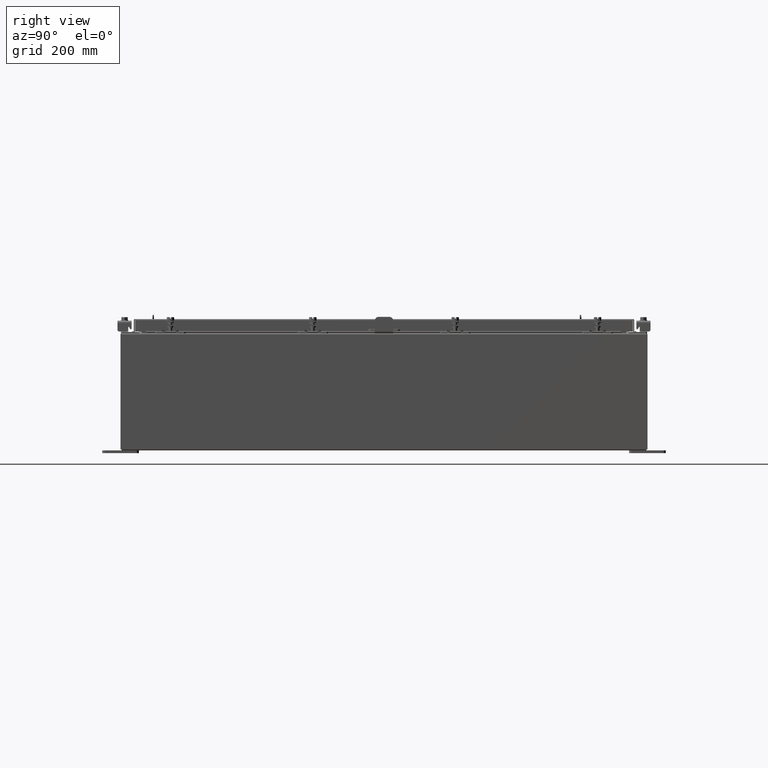
[diagram: clean part render]
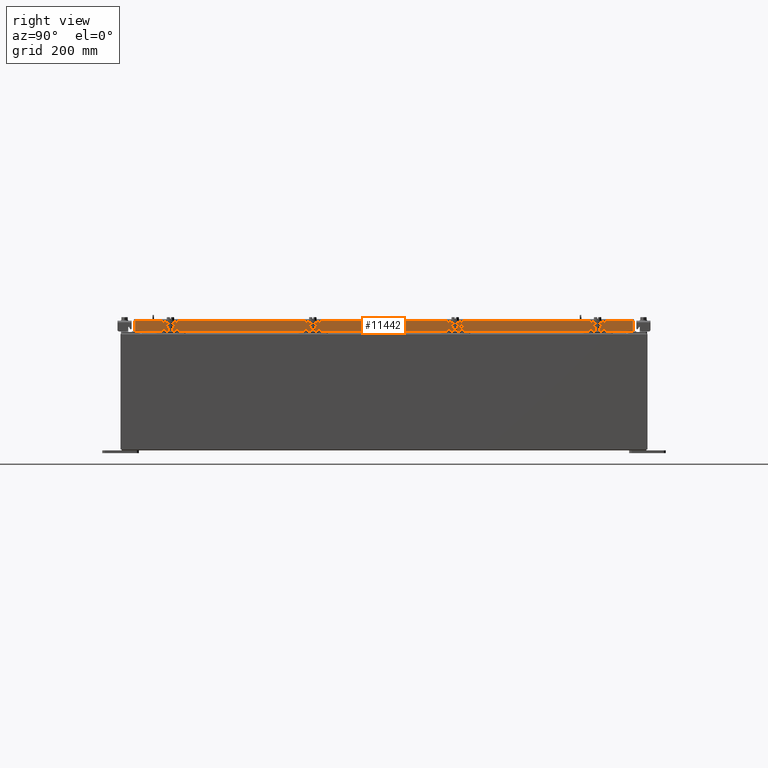
[diagram: same view with one face highlighted and labeled with its STEP entity id]
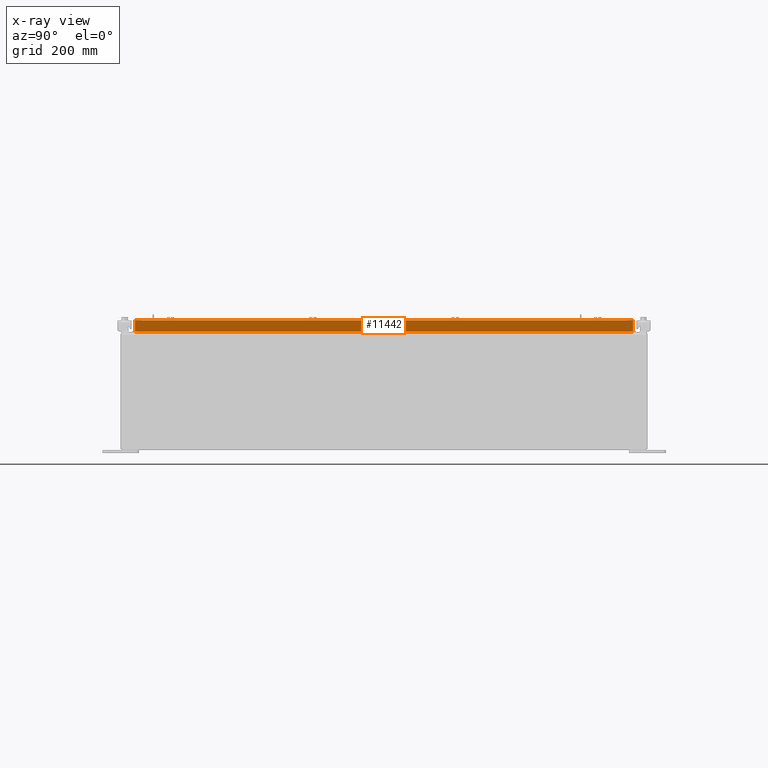
[diagram: x-ray of the same camera — body ghosted, the highlighted face saturated]
A machine part, right view. The second image highlights one B-rep face of the part: STEP entity #11442.
The next image is the same camera in x-ray: the body ghosted, the highlighted face saturated — about 0% of this face is hidden behind the body in this view.
In plain terms, the highlighted planar face has unit normal (1, 0, 0).
Its self-contained STEP definition (entity closure, byte-faithful):
#77 = VERTEX_POINT ( 'NONE', #16810 ) ;
#1429 = LINE ( 'NONE', #14726, #10684 ) ;
#2541 = DIRECTION ( 'NONE',  ( 0.0000000000000000000, -1.000000000000000000, 0.0000000000000000000 ) ) ;
#3144 = CARTESIAN_POINT ( 'NONE',  ( 14.07799999999999900, -17.00515786437626900, -0.8499999999999999800 ) ) ;
#3795 = ORIENTED_EDGE ( 'NONE', *, *, #22331, .F. ) ;
#3804 = DIRECTION ( 'NONE',  ( -2.818880942772360500E-015, -6.982962677686269100E-015, 1.000000000000000000 ) ) ;
#3841 = VECTOR ( 'NONE', #3804, 39.37007874015748100 ) ;
#4962 = CARTESIAN_POINT ( 'NONE',  ( 14.07799999999999600, 16.25515786437626900, -0.8499999999999999800 ) ) ;
#5165 = CARTESIAN_POINT ( 'NONE',  ( 14.07799999999999900, -17.09400000000000100, -0.8499999999999999800 ) ) ;
#6523 = CARTESIAN_POINT ( 'NONE',  ( 14.07799999999999600, -16.25515786437626900, -0.8499999999999999800 ) ) ;
#6545 = FACE_OUTER_BOUND ( 'NONE', #8968, .T. ) ;
#6692 = LINE ( 'NONE', #14753, #10764 ) ;
#7309 = VERTEX_POINT ( 'NONE', #3144 ) ;
#7569 = ORIENTED_EDGE ( 'NONE', *, *, #10719, .F. ) ;
#8122 = PLANE ( 'NONE',  #21911 ) ;
#8805 = ORIENTED_EDGE ( 'NONE', *, *, #14671, .T. ) ;
#8968 = EDGE_LOOP ( 'NONE', ( #7569, #9024, #3795, #21104, #10494, #8805 ) ) ;
#9024 = ORIENTED_EDGE ( 'NONE', *, *, #10276, .F. ) ;
#9754 = CARTESIAN_POINT ( 'NONE',  ( 14.07799999999999800, 17.00515786437626500, 1.584471836325272600E-013 ) ) ;
#9810 = EDGE_CURVE ( 'NONE', #14790, #12229, #17823, .T. ) ;
#10276 = EDGE_CURVE ( 'NONE', #21145, #7309, #1429, .T. ) ;
#10494 = ORIENTED_EDGE ( 'NONE', *, *, #18887, .T. ) ;
#10684 = VECTOR ( 'NONE', #2541, 39.37007874015748100 ) ;
#10719 = EDGE_CURVE ( 'NONE', #7309, #17833, #12587, .T. ) ;
#10764 = VECTOR ( 'NONE', #13025, 39.37007874015748100 ) ;
#11442 = ADVANCED_FACE ( 'NONE', ( #6545 ), #8122, .T. ) ;
#11616 = CARTESIAN_POINT ( 'NONE',  ( 14.07799999999999900, 17.00515786437627200, -0.8499999999999999800 ) ) ;
#11666 = DIRECTION ( 'NONE',  ( 0.0000000000000000000, -1.000000000000000000, 0.0000000000000000000 ) ) ;
#11856 = LINE ( 'NONE', #20290, #15927 ) ;
#12229 = VERTEX_POINT ( 'NONE', #4962 ) ;
#12587 = LINE ( 'NONE', #14243, #3841 ) ;
#13025 = DIRECTION ( 'NONE',  ( 0.0000000000000000000, -1.000000000000000000, 0.0000000000000000000 ) ) ;
#13171 = CARTESIAN_POINT ( 'NONE',  ( 14.07799999999999800, -17.00515786437627200, -0.08770000000000026400 ) ) ;
#13606 = VECTOR ( 'NONE', #20161, 39.37007874015748100 ) ;
#13881 = DIRECTION ( 'NONE',  ( 0.0000000000000000000, -1.000000000000000000, 0.0000000000000000000 ) ) ;
#14243 = CARTESIAN_POINT ( 'NONE',  ( 14.07799999999999800, -17.00515786437627200, -0.07470000000000015500 ) ) ;
#14671 = EDGE_CURVE ( 'NONE', #77, #17833, #6692, .T. ) ;
#14726 = CARTESIAN_POINT ( 'NONE',  ( 14.07799999999999900, -17.09400000000000100, -0.8499999999999999800 ) ) ;
#14753 = CARTESIAN_POINT ( 'NONE',  ( 14.07799999999999800, 0.0000000000000000000, -0.08770000000000026400 ) ) ;
#14790 = VERTEX_POINT ( 'NONE', #11616 ) ;
#15062 = DIRECTION ( 'NONE',  ( 1.000000000000000000, 0.0000000000000000000, 2.818880942772360100E-015 ) ) ;
#15927 = VECTOR ( 'NONE', #11666, 39.37007874015748100 ) ;
#16804 = CARTESIAN_POINT ( 'NONE',  ( 14.07799999999999800, 0.0000000000000000000, 4.043135030623109600E-014 ) ) ;
#16810 = CARTESIAN_POINT ( 'NONE',  ( 14.07799999999999800, 17.00515786437626200, -0.08770000000000026400 ) ) ;
#17823 = LINE ( 'NONE', #5165, #21842 ) ;
#17833 = VERTEX_POINT ( 'NONE', #13171 ) ;
#18190 = LINE ( 'NONE', #9754, #13606 ) ;
#18887 = EDGE_CURVE ( 'NONE', #14790, #77, #18190, .T. ) ;
#20161 = DIRECTION ( 'NONE',  ( -2.818880942772360500E-015, -6.982962677686269100E-015, 1.000000000000000000 ) ) ;
#20254 = DIRECTION ( 'NONE',  ( 2.818880942772360100E-015, 0.0000000000000000000, -1.000000000000000000 ) ) ;
#20290 = CARTESIAN_POINT ( 'NONE',  ( 14.07799999999999600, 16.25515786437627200, -0.8499999999999999800 ) ) ;
#21104 = ORIENTED_EDGE ( 'NONE', *, *, #9810, .F. ) ;
#21145 = VERTEX_POINT ( 'NONE', #6523 ) ;
#21842 = VECTOR ( 'NONE', #13881, 39.37007874015748100 ) ;
#21911 = AXIS2_PLACEMENT_3D ( 'NONE', #16804, #15062, #20254 ) ;
#22331 = EDGE_CURVE ( 'NONE', #12229, #21145, #11856, .T. ) ;